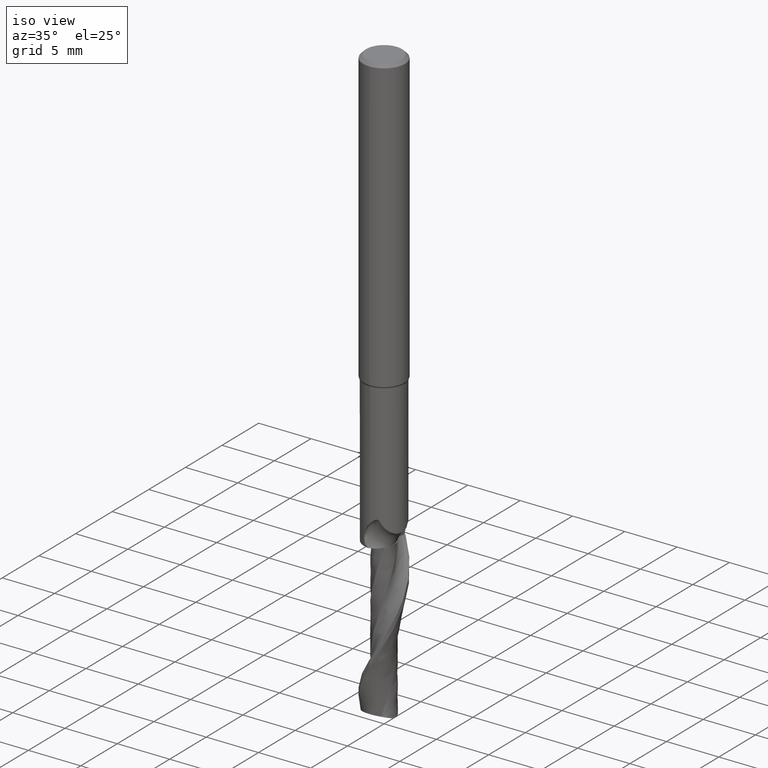
[diagram: clean part render]
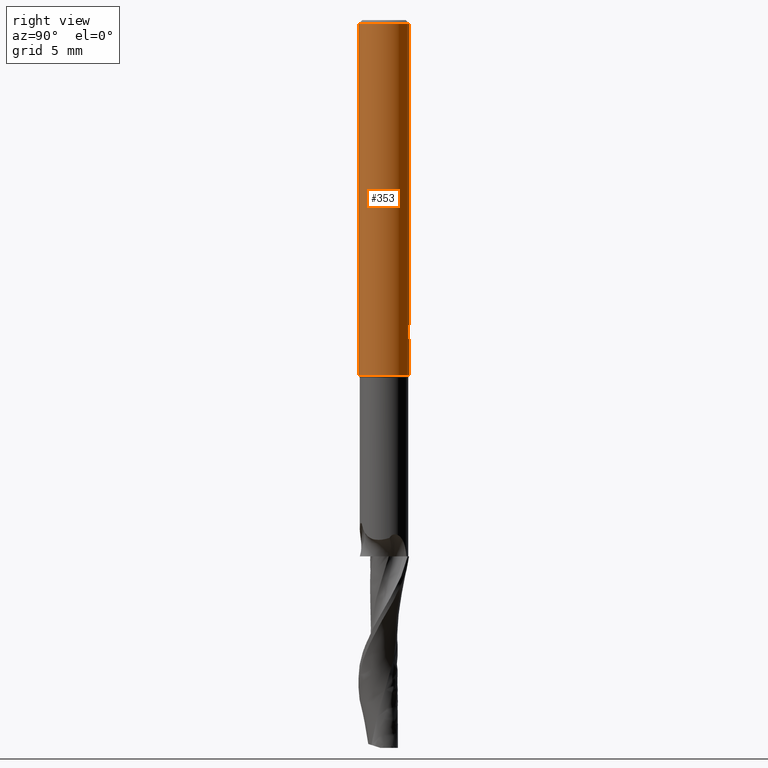
[diagram: tour spotlight — one face highlighted and labeled with its STEP entity id]
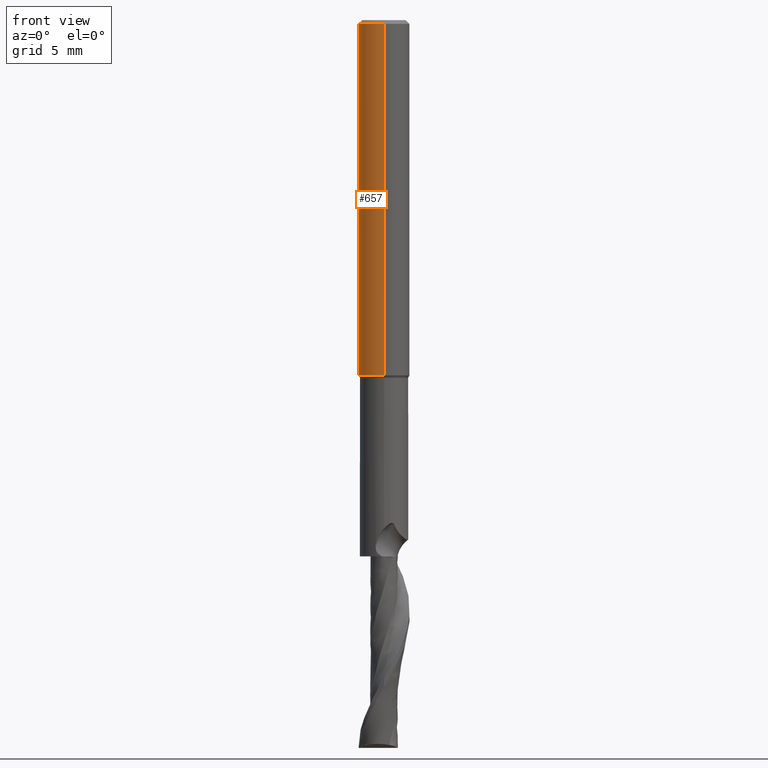
[diagram: tour spotlight — one face highlighted and labeled with its STEP entity id]
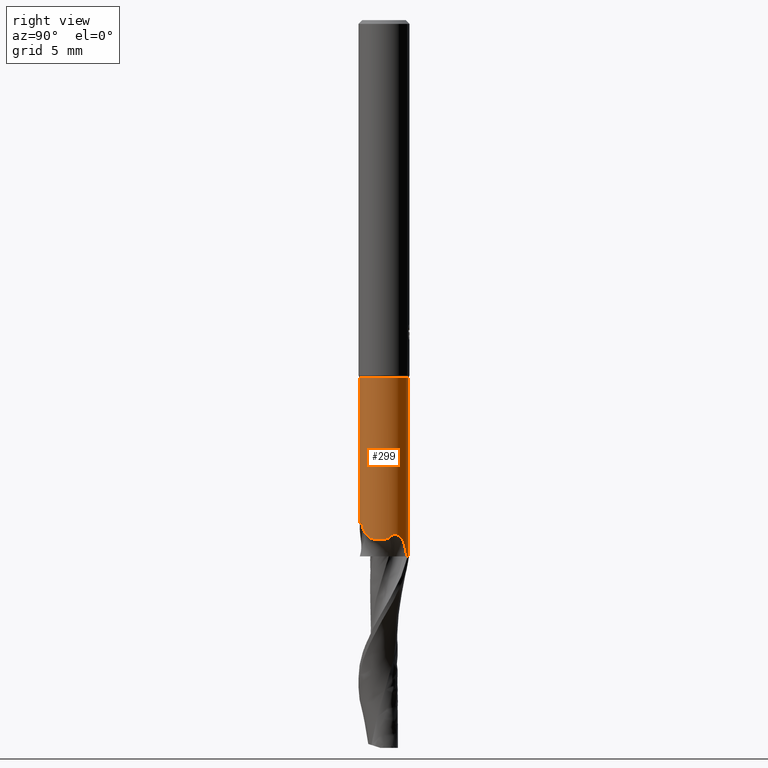
[diagram: tour spotlight — one face highlighted and labeled with its STEP entity id]
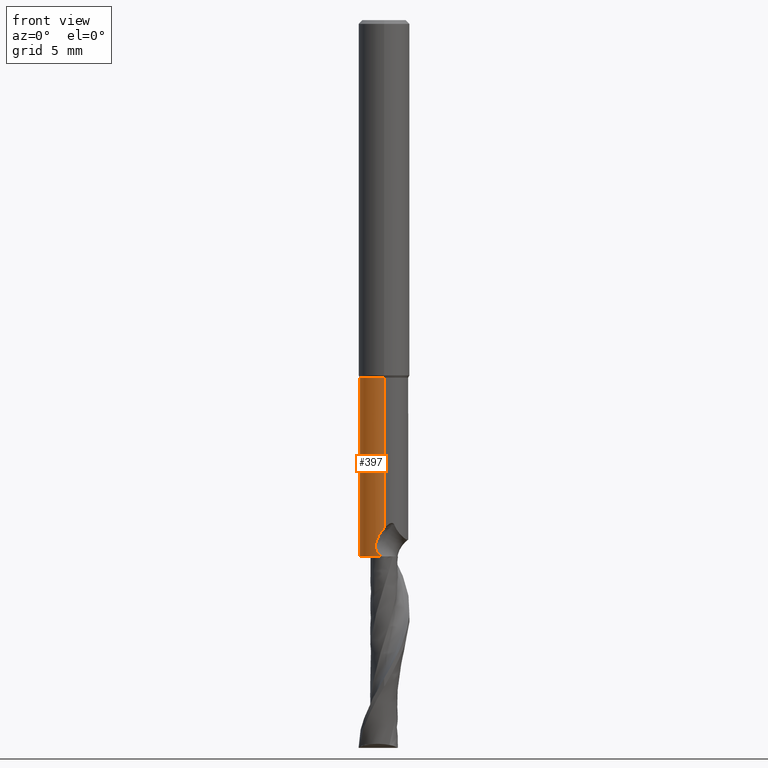
[diagram: tour spotlight — one face highlighted and labeled with its STEP entity id]
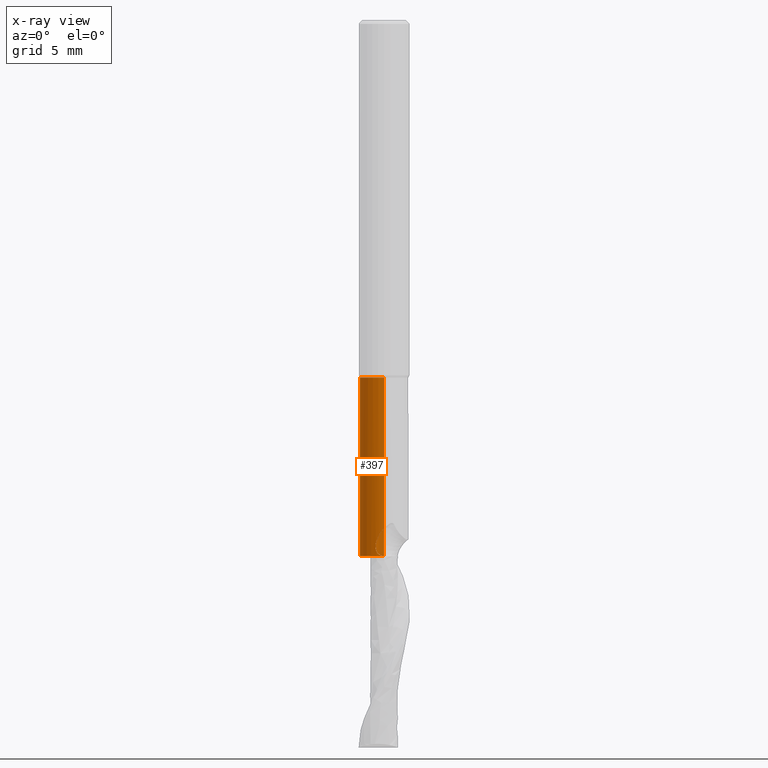
[diagram: x-ray of the same camera — body ghosted, this tour face saturated]
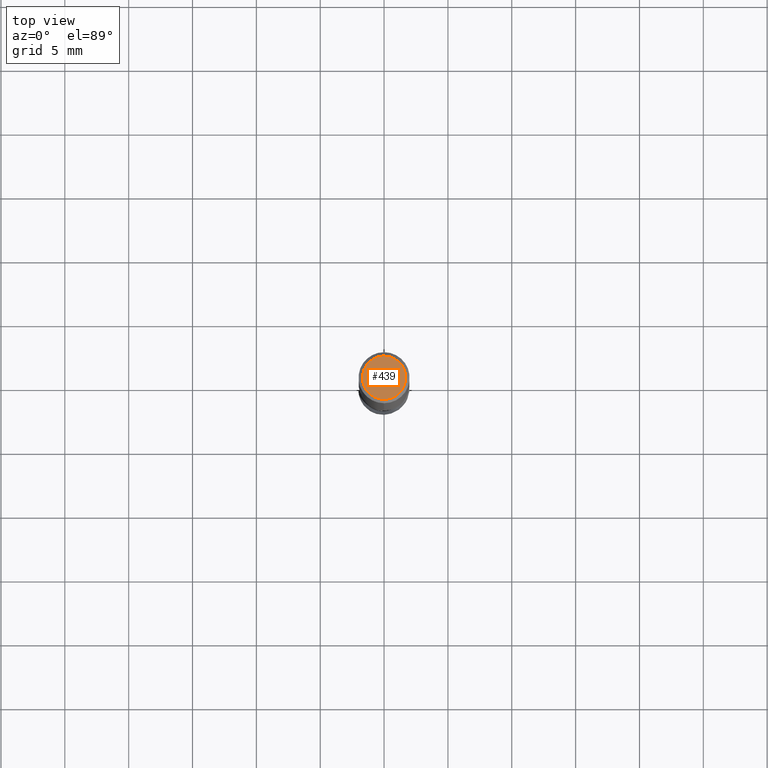
[diagram: tour spotlight — one face highlighted and labeled with its STEP entity id]
A machine part: a face-by-face anatomy tour. The part has 44 B-rep faces; the first image is the clean iso view, then the 5 largest visible faces are spotlighted one at a time (largest first), each with its STEP entity span.

Face 1 — right view, entity #353. In plain terms, the highlighted cylindrical surface (edge-blend (fillet) strip) has radius 2 mm, axis along (-0, -0, 1).
Definition (entity closure, byte-faithful):
#271=VERTEX_POINT('',#766);
#281=EDGE_CURVE('',#271,#385,#778,.T.);
#297=EDGE_CURVE('',#653,#633,#794,.T.);
#301=VERTEX_POINT('',#799);
#311=EDGE_CURVE('',#425,#403,#809,.T.);
#327=EDGE_CURVE('',#663,#677,#828,.T.);
#329=EDGE_CURVE('',#301,#595,#830,.T.);
#341=EDGE_CURVE('',#403,#697,#843,.T.);
#353=ADVANCED_FACE('',(#856,#857),#858,.T.);
#363=EDGE_CURVE('',#595,#383,#870,.T.);
#383=VERTEX_POINT('',#892);
#385=VERTEX_POINT('',#894);
#403=VERTEX_POINT('',#915);
#417=EDGE_CURVE('',#535,#301,#930,.T.);
#425=VERTEX_POINT('',#938);
#461=EDGE_CURVE('',#633,#535,#979,.T.);
#467=VERTEX_POINT('',#985);
#477=VERTEX_POINT('',#995);
#485=EDGE_CURVE('',#677,#653,#1003,.T.);
#519=EDGE_CURVE('',#383,#467,#1040,.T.);
#535=VERTEX_POINT('',#1058);
#549=EDGE_CURVE('',#385,#663,#1073,.T.);
#551=EDGE_CURVE('',#477,#425,#1075,.T.);
#565=EDGE_CURVE('',#477,#697,#1091,.T.);
#595=VERTEX_POINT('',#1124);
#611=EDGE_CURVE('',#467,#271,#1141,.T.);
#633=VERTEX_POINT('',#1164);
#653=VERTEX_POINT('',#1186);
#663=VERTEX_POINT('',#1199);
#677=VERTEX_POINT('',#1213);
#697=VERTEX_POINT('',#1233);
#766=CARTESIAN_POINT('',(0.0141420472348298,1.99995,-24.2846962754027));
#778=LINE('',#1316,#1317);
#794=B_SPLINE_CURVE_WITH_KNOTS('',3,(#1349,#1350,#1351,#1352,#1353,#1354,#1355,#1356,#1357,#1358),.UNSPECIFIED.,.F.,.F.,(4,2,2,2,4),(2.47863710077646,2.75415673208568,3.02971394424,3.30527115639432,3.58031831499124),.UNSPECIFIED.);
#799=CARTESIAN_POINT('',(0.388239530106406,1.96195567413302,-25.0531738714549));
#809=CIRCLE('',#1389,2.0);
#828=ELLIPSE('',#1891,2.22985686408572,2.0);
#830=B_SPLINE_CURVE_WITH_KNOTS('',3,(#1894,#1895,#1896,#1897,#1898,#1899),.UNSPECIFIED.,.F.,.F.,(4,2,4),(3.58031793477393,3.85536506812274,4.13079977698029),.UNSPECIFIED.);
#843=LINE('',#1955,#1956);
#856=FACE_OUTER_BOUND('',#2013,.T.);
#857=FACE_BOUND('',#2014,.T.);
#858=CYLINDRICAL_SURFACE('',#2015,2.0);
#870=LINE('',#2065,#2066);
#892=CARTESIAN_POINT('',(0.594300726619978,1.90966139572935,-24.0560046934539));
#894=CARTESIAN_POINT('',(0.0141420472348278,1.99995,-24.4953741551121));
#915=CARTESIAN_POINT('',(2.44921270764475E-016,-2.0,-27.827));
#930=LINE('',#2417,#2418);
#938=CARTESIAN_POINT('',(0.0,2.0,-27.827));
#979=ELLIPSE('',#2561,6.09598914673955,2.0);
#985=CARTESIAN_POINT('',(0.355294106929425,1.96818853202157,-23.8271001230516));
#995=CARTESIAN_POINT('',(0.0,2.0,-0.300000000000001));
#1003=LINE('',#2628,#2629);
#1040=B_SPLINE_CURVE_WITH_KNOTS('',3,(#2737,#2738,#2739,#2740,#2741,#2742),.UNSPECIFIED.,.F.,.F.,(4,2,4),(0.275434718458155,0.550869436916311,0.825916579511663),.UNSPECIFIED.);
#1058=CARTESIAN_POINT('',(0.388239530106406,1.96195567413302,-24.4137045165689));
#1073=B_SPLINE_CURVE_WITH_KNOTS('',3,(#3047,#3048,#3049,#3050,#3051,#3052,#3053,#3054,#3055,#3056,#3057,#3058,#3059,#3060),.UNSPECIFIED.,.F.,.F.,(4,2,2,2,2,2,4),(1.3940533448094,1.59305029627677,1.79204724774415,1.99104419921152,2.18953394443492,2.38802368965831,2.58788334465802),.UNSPECIFIED.);
#1075=LINE('',#3063,#3064);
#1091=CIRCLE('',#3083,2.0);
#1124=CARTESIAN_POINT('',(0.594300726619979,1.90966139572935,-24.8449259760814));
#1141=B_SPLINE_CURVE_WITH_KNOTS('',3,(#3378,#3379,#3380,#3381,#3382,#3383,#3384,#3385,#3386,#3387,#3388,#3389,#3390,#3391,#3392,#3393,#3394,#3395,#3396,#3397,#3398,#3399,#3400,#3401,#3402,#3403,#3404),.UNSPECIFIED.,.F.,.F.,(4,2,3,2,2,2,2,2,2,2,2,2,4),(-0.241196566335445,-0.120598283167723,0.0,0.120598283167722,0.241196566335445,0.362106961487308,0.483017356639172,0.603402124489602,0.723786892340032,0.844326704278919,0.964866516217805,1.08540632815669,1.20594614009558),.UNSPECIFIED.);
#1164=CARTESIAN_POINT('',(0.128931499758958,1.99583984036042,-25.1603257347557));
#1186=CARTESIAN_POINT('',(0.0141420472348417,1.99995,-25.1738041171279));
#1199=CARTESIAN_POINT('',(0.254716758957655,1.98371353090765,-24.46278631519));
#1213=CARTESIAN_POINT('',(0.0141420472348321,1.99995,-24.5813936515401));
#1233=CARTESIAN_POINT('',(2.44921270764475E-016,-2.0,-0.300000000000001));
#1316=CARTESIAN_POINT('',(0.0141420472348321,1.99995,-24.500699295237));
#1317=VECTOR('',#4113,1.0);
#1349=CARTESIAN_POINT('',(-0.680868181484992,1.88053676365056,-24.7285993932489));
#1350=CARTESIAN_POINT('',(-0.643826860906208,1.89394795255846,-24.8175974984493));
#1351=CARTESIAN_POINT('',(-0.588311108055693,1.91265667778744,-24.8983839327711));
#1352=CARTESIAN_POINT('',(-0.460784129331614,1.94731730955658,-25.0259706266644));
#1353=CARTESIAN_POINT('',(-0.379956224266731,1.96563920013188,-25.0815724216142));
#1354=CARTESIAN_POINT('',(-0.201824147626191,1.99182609963768,-25.1557590477626));
#1355=CARTESIAN_POINT('',(-0.104455673211344,1.99938137344129,-25.1742984674224));
#1356=CARTESIAN_POINT('',(0.0790754718096537,2.0005381100337,-25.1742984674224));
#1357=CARTESIAN_POINT('',(0.176364487108717,1.99423335410359,-25.1558205509355));
#1358=CARTESIAN_POINT('',(0.265409232102969,1.98231126201576,-25.1187784365451));
#1389=AXIS2_PLACEMENT_3D('',#4134,#4135,#4136);
#1891=AXIS2_PLACEMENT_3D('',#4160,#4161,#4162);
#1894=CARTESIAN_POINT('',(0.265409110337669,1.98231127831876,-25.118778243625));
#1895=CARTESIAN_POINT('',(0.354453847846456,1.97038919280086,-25.0817361325388));
#1896=CARTESIAN_POINT('',(0.435313554004913,1.95316202805645,-25.026172072394));
#1897=CARTESIAN_POINT('',(0.562989172282662,1.9202591568012,-24.89855402393));
#1898=CARTESIAN_POINT('',(0.618572754527316,1.9023425659964,-24.8176876731927));
#1899=CARTESIAN_POINT('',(0.655641428183205,1.88947990665418,-24.7286386647402));
#1955=CARTESIAN_POINT('',(2.44921270764475E-016,-2.0,-14.0635));
#1956=VECTOR('',#4175,1.0);
#2013=EDGE_LOOP('',(#4186,#4187,#4188,#4189));
#2014=EDGE_LOOP('',(#4190,#4191,#4192,#4193,#4194,#4195,#4196,#4197,#4198,#4199,#4200));
#2015=AXIS2_PLACEMENT_3D('',#4201,#4202,#4203);
#2065=CARTESIAN_POINT('',(0.594300726619979,1.90966139572935,-24.4504653347676));
#2066=VECTOR('',#4220,1.0);
#2417=CARTESIAN_POINT('',(0.388239530106406,1.96195567413302,-24.7334391940119));
#2418=VECTOR('',#4283,1.0);
#2561=AXIS2_PLACEMENT_3D('',#4341,#4342,#4343);
#2628=CARTESIAN_POINT('',(0.0141420472348321,1.99995,-24.500699295237));
#2629=VECTOR('',#4345,1.0);
#2737=CARTESIAN_POINT('',(0.655641431725944,1.88947990542486,-24.1722920109577));
#2738=CARTESIAN_POINT('',(0.618572756769115,1.90234256529637,-24.083242999422));
#2739=CARTESIAN_POINT('',(0.562989172577703,1.92025915679417,-24.0023766458891));
#2740=CARTESIAN_POINT('',(0.435313549868482,1.95316202905352,-23.8747585930844));
#2741=CARTESIAN_POINT('',(0.35445384094713,1.97038919417876,-23.8191945310685));
#2742=CARTESIAN_POINT('',(0.26540910040509,1.98231127964862,-23.7821524187404));
#3047=CARTESIAN_POINT('',(-0.419814722809387,1.95544255822371,-23.7704280509732));
#3048=CARTESIAN_POINT('',(-0.446722782526317,1.94966565895748,-23.8352092471449));
#3049=CARTESIAN_POINT('',(-0.460036951189519,1.94637252434889,-23.9057871064825));
#3050=CARTESIAN_POINT('',(-0.460036951189519,1.94637252434889,-24.0384517407941));
#3051=CARTESIAN_POINT('',(-0.44672278252632,1.94966565895748,-24.1090296001318));
#3052=CARTESIAN_POINT('',(-0.392906663092473,1.96121945748994,-24.2385919924752));
#3053=CARTESIAN_POINT('',(-0.352417047036487,1.96927182555512,-24.2976001387423));
#3054=CARTESIAN_POINT('',(-0.259215124739542,1.98368986170307,-24.3906624662857));
#3055=CARTESIAN_POINT('',(-0.200248329557567,1.99100650873055,-24.4310384942736));
#3056=CARTESIAN_POINT('',(-0.0708343866923031,1.9997971898934,-24.4846703352456));
#3057=CARTESIAN_POINT('',(-0.000370120584158862,2.00109406037063,-24.4979137314982));
#3058=CARTESIAN_POINT('',(0.132341223636317,1.99672832643899,-24.4979137314982));
#3059=CARTESIAN_POINT('',(0.20301755667824,1.9907422857204,-24.484506171205));
#3060=CARTESIAN_POINT('',(0.26778183492864,1.98199215156929,-24.4575530075221));
#3063=CARTESIAN_POINT('',(-2.44921270764475E-016,2.0,-14.0635));
#3064=VECTOR('',#4426,1.0);
#3083=AXIS2_PLACEMENT_3D('',#4465,#4466,#4467);
#3378=CARTESIAN_POINT('',(0.295631650406827,1.9780298095018,-23.7442849582727));
#3379=CARTESIAN_POINT('',(0.323880786820468,1.9738077604809,-23.7725719620584));
#3380=CARTESIAN_POINT('',(0.348416185930154,1.969487455183,-23.8084045546681));
#3381=CARTESIAN_POINT('',(0.381007144173937,1.96344295425725,-23.8870391020648));
#3382=CARTESIAN_POINT('',(0.389057376072906,1.96179365839613,-23.9298490040714));
#3383=CARTESIAN_POINT('',(0.389057376072906,1.96179365839613,-23.970048431794));
#3384=CARTESIAN_POINT('',(0.389057376072906,1.96179365839613,-24.0102478595166));
#3385=CARTESIAN_POINT('',(0.381007144173937,1.96344295425725,-24.0530577615232));
#3386=CARTESIAN_POINT('',(0.348416185930154,1.969487455183,-24.1316923089198));
#3387=CARTESIAN_POINT('',(0.323880786820468,1.9738077604809,-24.1675249015296));
#3388=CARTESIAN_POINT('',(0.267309404378482,1.98226278531256,-24.2241721167175));
#3389=CARTESIAN_POINT('',(0.231438460926664,1.98695752117379,-24.2487755772123));
#3390=CARTESIAN_POINT('',(0.152710383597332,1.9945534564892,-24.281462302865));
#3391=CARTESIAN_POINT('',(0.109844622981093,1.99738792629204,-24.2895402621598));
#3392=CARTESIAN_POINT('',(0.0294615715138271,2.00018556457383,-24.2895402621598));
#3393=CARTESIAN_POINT('',(-0.0133231657114743,2.00034281068398,-24.2815250330051));
#3394=CARTESIAN_POINT('',(-0.0920071672463125,1.9982701389473,-24.2489435191623));
#3395=CARTESIAN_POINT('',(-0.127909037236244,1.99610810586212,-24.2243792441208));
#3396=CARTESIAN_POINT('',(-0.184632700329662,1.9916629085794,-24.1677040981433));
#3397=CARTESIAN_POINT('',(-0.209236602175248,1.98909274509457,-24.131791109389));
#3398=CARTESIAN_POINT('',(-0.241884566067165,1.98538705628366,-24.0530553990454));
#3399=CARTESIAN_POINT('',(-0.249926284658786,1.98432276916752,-24.0102283691069));
#3400=CARTESIAN_POINT('',(-0.249926284658786,1.98432276916752,-23.929868494481));
#3401=CARTESIAN_POINT('',(-0.241884566067165,1.98538705628366,-23.8870414645426));
#3402=CARTESIAN_POINT('',(-0.209236602175248,1.98909274509457,-23.808305754199));
#3403=CARTESIAN_POINT('',(-0.184632700329663,1.9916629085794,-23.7723927654447));
#3404=CARTESIAN_POINT('',(-0.156252616870579,1.99388693754714,-23.7440369561549));
#4113=DIRECTION('',(0.0,0.0,-1.0));
#4134=CARTESIAN_POINT('',(0.0,0.0,-27.827));
#4135=DIRECTION('',(0.0,0.0,-1.0));
#4136=DIRECTION('',(0.0,1.0,0.0));
#4160=CARTESIAN_POINT('',(0.0,0.0,-24.5883659161687));
#4161=DIRECTION('',(-0.442195774284071,0.0,0.896918556617774));
#4162=DIRECTION('',(0.896918556617774,-0.0,0.442195774284071));
#4175=DIRECTION('',(-0.0,-0.0,1.0));
#4186=ORIENTED_EDGE('',*,*,#551,.F.);
#4187=ORIENTED_EDGE('',*,*,#565,.T.);
#4188=ORIENTED_EDGE('',*,*,#341,.F.);
#4189=ORIENTED_EDGE('',*,*,#311,.F.);
#4190=ORIENTED_EDGE('',*,*,#327,.T.);
#4191=ORIENTED_EDGE('',*,*,#485,.T.);
#4192=ORIENTED_EDGE('',*,*,#297,.T.);
#4193=ORIENTED_EDGE('',*,*,#461,.T.);
#4194=ORIENTED_EDGE('',*,*,#417,.T.);
#4195=ORIENTED_EDGE('',*,*,#329,.T.);
#4196=ORIENTED_EDGE('',*,*,#363,.T.);
#4197=ORIENTED_EDGE('',*,*,#519,.T.);
#4198=ORIENTED_EDGE('',*,*,#611,.T.);
#4199=ORIENTED_EDGE('',*,*,#281,.T.);
#4200=ORIENTED_EDGE('',*,*,#549,.T.);
#4201=CARTESIAN_POINT('',(0.0,0.0,-14.0635));
#4202=DIRECTION('',(-0.0,-0.0,1.0));
#4203=DIRECTION('',(0.0,1.0,0.0));
#4220=DIRECTION('',(-0.0,-0.0,1.0));
#4283=DIRECTION('',(0.0,0.0,-1.0));
#4341=CARTESIAN_POINT('',(0.0,0.0,-25.5315560174573));
#4342=DIRECTION('',(0.944648353914092,0.0,-0.328084573619969));
#4343=DIRECTION('',(0.328084573619968,-0.0,0.944648353914092));
#4345=DIRECTION('',(0.0,0.0,-1.0));
#4426=DIRECTION('',(0.0,0.0,-1.0));
#4465=CARTESIAN_POINT('',(0.0,0.0,-0.300000000000001));
#4466=DIRECTION('',(0.0,0.0,-1.0));
#4467=DIRECTION('',(0.0,1.0,0.0));

Face 2 — front view, entity #657. In plain terms, the highlighted cylindrical surface (edge-blend (fillet) strip) has radius 2 mm, axis along (-0, -0, 1).
Definition (entity closure, byte-faithful):
#273=EDGE_CURVE('',#419,#669,#768,.T.);
#303=EDGE_CURVE('',#457,#723,#801,.T.);
#321=EDGE_CURVE('',#409,#457,#821,.T.);
#341=EDGE_CURVE('',#403,#697,#843,.T.);
#367=EDGE_CURVE('',#669,#709,#875,.T.);
#403=VERTEX_POINT('',#915);
#409=VERTEX_POINT('',#921);
#419=VERTEX_POINT('',#932);
#425=VERTEX_POINT('',#938);
#437=EDGE_CURVE('',#709,#573,#953,.T.);
#457=VERTEX_POINT('',#975);
#477=VERTEX_POINT('',#995);
#517=EDGE_CURVE('',#571,#419,#1038,.T.);
#539=EDGE_CURVE('',#723,#409,#1062,.T.);
#551=EDGE_CURVE('',#477,#425,#1075,.T.);
#557=EDGE_CURVE('',#573,#571,#1081,.T.);
#571=VERTEX_POINT('',#1097);
#573=VERTEX_POINT('',#1099);
#575=EDGE_CURVE('',#403,#425,#1101,.T.);
#581=EDGE_CURVE('',#697,#477,#1108,.T.);
#657=ADVANCED_FACE('',(#1190,#1191,#1192),#1193,.T.);
#669=VERTEX_POINT('',#1205);
#697=VERTEX_POINT('',#1233);
#709=VERTEX_POINT('',#1246);
#723=VERTEX_POINT('',#1260);
#768=LINE('',#1304,#1305);
#801=ELLIPSE('',#1366,2.22985686408572,2.0);
#821=LINE('',#1636,#1637);
#843=LINE('',#1955,#1956);
#875=B_SPLINE_CURVE_WITH_KNOTS('',3,(#2072,#2073,#2074,#2075,#2076,#2077,#2078,#2079,#2080,#2081,#2082,#2083,#2084,#2085,#2086,#2087,#2088,#2089,#2090,#2091,#2092,#2093,#2094,#2095,#2096,#2097,#2098),.UNSPECIFIED.,.F.,.F.,(4,2,3,2,2,2,2,2,2,2,2,2,4),(-0.241196566335445,-0.120598283167723,0.0,0.120598283167722,0.241196566335445,0.362106961487308,0.483017356639172,0.603402124489602,0.723786892340032,0.844326704278919,0.964866516217805,1.08540632815669,1.20594614009558),.UNSPECIFIED.);
#915=CARTESIAN_POINT('',(2.44921270764475E-016,-2.0,-27.827));
#921=CARTESIAN_POINT('',(-0.0141420472348398,1.99995,-25.1742968356715));
#932=CARTESIAN_POINT('',(-0.0141420472348287,1.99995,-24.4918075411024));
#938=CARTESIAN_POINT('',(0.0,2.0,-27.827));
#953=B_SPLINE_CURVE_WITH_KNOTS('',3,(#2445,#2446,#2447,#2448,#2449,#2450,#2451,#2452,#2453,#2454,#2455,#2456,#2457,#2458,#2459,#2460,#2461,#2462,#2463,#2464,#2465,#2466,#2467,#2468,#2469,#2470,#2471),.UNSPECIFIED.,.F.,.F.,(4,2,3,2,2,2,2,2,2,2,2,2,4),(-0.241196566335445,-0.120598283167723,0.0,0.120598283167722,0.241196566335445,0.362106961487308,0.483017356639172,0.603402124489602,0.723786892340032,0.844326704278919,0.964866516217805,1.08540632815669,1.20594614009558),.UNSPECIFIED.);
#975=CARTESIAN_POINT('',(-0.0141420472348321,1.99995,-24.5953381807972));
#995=CARTESIAN_POINT('',(0.0,2.0,-0.300000000000001));
#1038=B_SPLINE_CURVE_WITH_KNOTS('',3,(#2721,#2722,#2723,#2724,#2725,#2726,#2727,#2728,#2729,#2730,#2731,#2732,#2733,#2734),.UNSPECIFIED.,.F.,.F.,(4,2,2,2,2,2,4),(1.3940533448094,1.59305029627677,1.79204724774415,1.99104419921152,2.18953394443492,2.38802368965831,2.58788334465802),.UNSPECIFIED.);
#1062=B_SPLINE_CURVE_WITH_KNOTS('',3,(#2797,#2798,#2799,#2800,#2801,#2802,#2803,#2804,#2805,#2806),.UNSPECIFIED.,.F.,.F.,(4,2,2,2,4),(2.47863710077646,2.75415673208568,3.02971394424,3.30527115639432,3.58031831499124),.UNSPECIFIED.);
#1075=LINE('',#3063,#3064);
#1081=CIRCLE('',#3071,2.0);
#1097=CARTESIAN_POINT('',(-0.460021123143866,1.94637626533552,-23.9680396758409));
#1099=CARTESIAN_POINT('',(-0.24991996972367,1.98432356452604,-23.9680396758409));
#1101=CIRCLE('',#3100,2.0);
#1108=CIRCLE('',#3110,2.0);
#1190=FACE_OUTER_BOUND('',#3561,.T.);
#1191=FACE_BOUND('',#3562,.T.);
#1192=FACE_BOUND('',#3563,.T.);
#1193=CYLINDRICAL_SURFACE('',#3564,2.0);
#1205=CARTESIAN_POINT('',(-0.0141420472348306,1.99995,-24.2783795339462));
#1233=CARTESIAN_POINT('',(2.44921270764475E-016,-2.0,-0.300000000000001));
#1246=CARTESIAN_POINT('',(-0.216163015515305,1.98828407193825,-24.1129967405364));
#1260=CARTESIAN_POINT('',(-0.59423081161075,1.90968315239268,-24.8813315950532));
#1304=CARTESIAN_POINT('',(-0.0141420472348321,1.99995,-24.500699295237));
#1305=VECTOR('',#4096,1.0);
#1366=AXIS2_PLACEMENT_3D('',#4131,#4132,#4133);
#1636=CARTESIAN_POINT('',(-0.0141420472348321,1.99995,-24.500699295237));
#1637=VECTOR('',#4152,1.0);
#1955=CARTESIAN_POINT('',(2.44921270764475E-016,-2.0,-14.0635));
#1956=VECTOR('',#4175,1.0);
#2072=CARTESIAN_POINT('',(0.295631650406827,1.9780298095018,-23.7442849582727));
#2073=CARTESIAN_POINT('',(0.323880786820468,1.9738077604809,-23.7725719620584));
#2074=CARTESIAN_POINT('',(0.348416185930154,1.969487455183,-23.8084045546681));
#2075=CARTESIAN_POINT('',(0.381007144173937,1.96344295425725,-23.8870391020648));
#2076=CARTESIAN_POINT('',(0.389057376072906,1.96179365839613,-23.9298490040714));
#2077=CARTESIAN_POINT('',(0.389057376072906,1.96179365839613,-23.970048431794));
#2078=CARTESIAN_POINT('',(0.389057376072906,1.96179365839613,-24.0102478595166));
#2079=CARTESIAN_POINT('',(0.381007144173937,1.96344295425725,-24.0530577615232));
#2080=CARTESIAN_POINT('',(0.348416185930154,1.969487455183,-24.1316923089198));
#2081=CARTESIAN_POINT('',(0.323880786820468,1.9738077604809,-24.1675249015296));
#2082=CARTESIAN_POINT('',(0.267309404378482,1.98226278531256,-24.2241721167175));
#2083=CARTESIAN_POINT('',(0.231438460926664,1.98695752117379,-24.2487755772123));
#2084=CARTESIAN_POINT('',(0.152710383597332,1.9945534564892,-24.281462302865));
#2085=CARTESIAN_POINT('',(0.109844622981093,1.99738792629204,-24.2895402621598));
#2086=CARTESIAN_POINT('',(0.0294615715138271,2.00018556457383,-24.2895402621598));
#2087=CARTESIAN_POINT('',(-0.0133231657114743,2.00034281068398,-24.2815250330051));
#2088=CARTESIAN_POINT('',(-0.0920071672463125,1.9982701389473,-24.2489435191623));
#2089=CARTESIAN_POINT('',(-0.127909037236244,1.99610810586212,-24.2243792441208));
#2090=CARTESIAN_POINT('',(-0.184632700329662,1.9916629085794,-24.1677040981433));
#2091=CARTESIAN_POINT('',(-0.209236602175248,1.98909274509457,-24.131791109389));
#2092=CARTESIAN_POINT('',(-0.241884566067165,1.98538705628366,-24.0530553990454));
#2093=CARTESIAN_POINT('',(-0.249926284658786,1.98432276916752,-24.0102283691069));
#2094=CARTESIAN_POINT('',(-0.249926284658786,1.98432276916752,-23.929868494481));
#2095=CARTESIAN_POINT('',(-0.241884566067165,1.98538705628366,-23.8870414645426));
#2096=CARTESIAN_POINT('',(-0.209236602175248,1.98909274509457,-23.808305754199));
#2097=CARTESIAN_POINT('',(-0.184632700329663,1.9916629085794,-23.7723927654447));
#2098=CARTESIAN_POINT('',(-0.156252616870579,1.99388693754714,-23.7440369561549));
#2445=CARTESIAN_POINT('',(0.295631650406827,1.9780298095018,-23.7442849582727));
#2446=CARTESIAN_POINT('',(0.323880786820468,1.9738077604809,-23.7725719620584));
#2447=CARTESIAN_POINT('',(0.348416185930154,1.969487455183,-23.8084045546681));
#2448=CARTESIAN_POINT('',(0.381007144173937,1.96344295425725,-23.8870391020648));
#2449=CARTESIAN_POINT('',(0.389057376072906,1.96179365839613,-23.9298490040714));
#2450=CARTESIAN_POINT('',(0.389057376072906,1.96179365839613,-23.970048431794));
#2451=CARTESIAN_POINT('',(0.389057376072906,1.96179365839613,-24.0102478595166));
#2452=CARTESIAN_POINT('',(0.381007144173937,1.96344295425725,-24.0530577615232));
#2453=CARTESIAN_POINT('',(0.348416185930154,1.969487455183,-24.1316923089198));
#2454=CARTESIAN_POINT('',(0.323880786820468,1.9738077604809,-24.1675249015296));
#2455=CARTESIAN_POINT('',(0.267309404378482,1.98226278531256,-24.2241721167175));
#2456=CARTESIAN_POINT('',(0.231438460926664,1.98695752117379,-24.2487755772123));
#2457=CARTESIAN_POINT('',(0.152710383597332,1.9945534564892,-24.281462302865));
#2458=CARTESIAN_POINT('',(0.109844622981093,1.99738792629204,-24.2895402621598));
#2459=CARTESIAN_POINT('',(0.0294615715138271,2.00018556457383,-24.2895402621598));
#2460=CARTESIAN_POINT('',(-0.0133231657114743,2.00034281068398,-24.2815250330051));
#2461=CARTESIAN_POINT('',(-0.0920071672463125,1.9982701389473,-24.2489435191623));
#2462=CARTESIAN_POINT('',(-0.127909037236244,1.99610810586212,-24.2243792441208));
#2463=CARTESIAN_POINT('',(-0.184632700329662,1.9916629085794,-24.1677040981433));
#2464=CARTESIAN_POINT('',(-0.209236602175248,1.98909274509457,-24.131791109389));
#2465=CARTESIAN_POINT('',(-0.241884566067165,1.98538705628366,-24.0530553990454));
#2466=CARTESIAN_POINT('',(-0.249926284658786,1.98432276916752,-24.0102283691069));
#2467=CARTESIAN_POINT('',(-0.249926284658786,1.98432276916752,-23.929868494481));
#2468=CARTESIAN_POINT('',(-0.241884566067165,1.98538705628366,-23.8870414645426));
#2469=CARTESIAN_POINT('',(-0.209236602175248,1.98909274509457,-23.808305754199));
#2470=CARTESIAN_POINT('',(-0.184632700329663,1.9916629085794,-23.7723927654447));
#2471=CARTESIAN_POINT('',(-0.156252616870579,1.99388693754714,-23.7440369561549));
#2721=CARTESIAN_POINT('',(-0.419814722809387,1.95544255822371,-23.7704280509732));
#2722=CARTESIAN_POINT('',(-0.446722782526317,1.94966565895748,-23.8352092471449));
#2723=CARTESIAN_POINT('',(-0.460036951189519,1.94637252434889,-23.9057871064825));
#2724=CARTESIAN_POINT('',(-0.460036951189519,1.94637252434889,-24.0384517407941));
#2725=CARTESIAN_POINT('',(-0.44672278252632,1.94966565895748,-24.1090296001318));
#2726=CARTESIAN_POINT('',(-0.392906663092473,1.96121945748994,-24.2385919924752));
#2727=CARTESIAN_POINT('',(-0.352417047036487,1.96927182555512,-24.2976001387423));
#2728=CARTESIAN_POINT('',(-0.259215124739542,1.98368986170307,-24.3906624662857));
#2729=CARTESIAN_POINT('',(-0.200248329557567,1.99100650873055,-24.4310384942736));
#2730=CARTESIAN_POINT('',(-0.0708343866923031,1.9997971898934,-24.4846703352456));
#2731=CARTESIAN_POINT('',(-0.000370120584158862,2.00109406037063,-24.4979137314982));
#2732=CARTESIAN_POINT('',(0.132341223636317,1.99672832643899,-24.4979137314982));
#2733=CARTESIAN_POINT('',(0.20301755667824,1.9907422857204,-24.484506171205));
#2734=CARTESIAN_POINT('',(0.26778183492864,1.98199215156929,-24.4575530075221));
#2797=CARTESIAN_POINT('',(-0.680868181484992,1.88053676365056,-24.7285993932489));
#2798=CARTESIAN_POINT('',(-0.643826860906208,1.89394795255846,-24.8175974984493));
#2799=CARTESIAN_POINT('',(-0.588311108055693,1.91265667778744,-24.8983839327711));
#2800=CARTESIAN_POINT('',(-0.460784129331614,1.94731730955658,-25.0259706266644));
#2801=CARTESIAN_POINT('',(-0.379956224266731,1.96563920013188,-25.0815724216142));
#2802=CARTESIAN_POINT('',(-0.201824147626191,1.99182609963768,-25.1557590477626));
#2803=CARTESIAN_POINT('',(-0.104455673211344,1.99938137344129,-25.1742984674224));
#2804=CARTESIAN_POINT('',(0.0790754718096537,2.0005381100337,-25.1742984674224));
#2805=CARTESIAN_POINT('',(0.176364487108717,1.99423335410359,-25.1558205509355));
#2806=CARTESIAN_POINT('',(0.265409232102969,1.98231126201576,-25.1187784365451));
#3063=CARTESIAN_POINT('',(-2.44921270764475E-016,2.0,-14.0635));
#3064=VECTOR('',#4426,1.0);
#3071=AXIS2_PLACEMENT_3D('',#4427,#4428,#4429);
#3100=AXIS2_PLACEMENT_3D('',#4468,#4469,#4470);
#3110=AXIS2_PLACEMENT_3D('',#4480,#4481,#4482);
#3561=EDGE_LOOP('',(#4561,#4562,#4563,#4564));
#3562=EDGE_LOOP('',(#4565,#4566,#4567));
#3563=EDGE_LOOP('',(#4568,#4569,#4570,#4571,#4572));
#3564=AXIS2_PLACEMENT_3D('',#4573,#4574,#4575);
#4096=DIRECTION('',(-0.0,-0.0,1.0));
#4131=CARTESIAN_POINT('',(0.0,0.0,-24.5883659161687));
#4132=DIRECTION('',(-0.442195774284071,0.0,0.896918556617774));
#4133=DIRECTION('',(0.896918556617774,-0.0,0.442195774284071));
#4152=DIRECTION('',(-0.0,-0.0,1.0));
#4175=DIRECTION('',(-0.0,-0.0,1.0));
#4426=DIRECTION('',(0.0,0.0,-1.0));
#4427=CARTESIAN_POINT('',(0.0,0.0,-23.9680396758409));
#4428=DIRECTION('',(0.0,-0.0,1.0));
#4429=DIRECTION('',(0.0,1.0,0.0));
#4468=CARTESIAN_POINT('',(0.0,0.0,-27.827));
#4469=DIRECTION('',(0.0,0.0,-1.0));
#4470=DIRECTION('',(0.0,1.0,0.0));
#4480=CARTESIAN_POINT('',(0.0,0.0,-0.300000000000001));
#4481=DIRECTION('',(0.0,0.0,-1.0));
#4482=DIRECTION('',(0.0,1.0,0.0));
#4561=ORIENTED_EDGE('',*,*,#551,.T.);
#4562=ORIENTED_EDGE('',*,*,#575,.F.);
#4563=ORIENTED_EDGE('',*,*,#341,.T.);
#4564=ORIENTED_EDGE('',*,*,#581,.T.);
#4565=ORIENTED_EDGE('',*,*,#539,.T.);
#4566=ORIENTED_EDGE('',*,*,#321,.T.);
#4567=ORIENTED_EDGE('',*,*,#303,.T.);
#4568=ORIENTED_EDGE('',*,*,#367,.T.);
#4569=ORIENTED_EDGE('',*,*,#437,.T.);
#4570=ORIENTED_EDGE('',*,*,#557,.T.);
#4571=ORIENTED_EDGE('',*,*,#517,.T.);
#4572=ORIENTED_EDGE('',*,*,#273,.T.);
#4573=CARTESIAN_POINT('',(0.0,0.0,-14.0635));
#4574=DIRECTION('',(-0.0,-0.0,1.0));
#4575=DIRECTION('',(0.0,1.0,0.0));

Face 3 — right view, entity #299. In plain terms, the highlighted cylindrical surface (edge-blend (fillet) strip) has radius 1.9 mm, axis along (-0, -0, 1).
Definition (entity closure, byte-faithful):
#289=EDGE_CURVE('',#555,#609,#786,.T.);
#293=VERTEX_POINT('',#790);
#299=ADVANCED_FACE('',(#796),#797,.T.);
#337=EDGE_CURVE('',#349,#631,#838,.T.);
#349=VERTEX_POINT('',#852);
#399=VERTEX_POINT('',#911);
#441=VERTEX_POINT('',#958);
#451=EDGE_CURVE('',#609,#729,#969,.T.);
#459=VERTEX_POINT('',#977);
#483=EDGE_CURVE('',#441,#459,#1001,.T.);
#555=VERTEX_POINT('',#1079);
#609=VERTEX_POINT('',#1139);
#631=VERTEX_POINT('',#1162);
#655=EDGE_CURVE('',#555,#399,#1188,.T.);
#659=EDGE_CURVE('',#729,#293,#1195,.T.);
#695=EDGE_CURVE('',#293,#441,#1231,.T.);
#711=EDGE_CURVE('',#349,#399,#1248,.T.);
#729=VERTEX_POINT('',#1268);
#739=EDGE_CURVE('',#631,#459,#1280,.T.);
#786=B_SPLINE_CURVE_WITH_KNOTS('',3,(#1329,#1330,#1331,#1332,#1333,#1334,#1335,#1336,#1337,#1338,#1339,#1340),.UNSPECIFIED.,.F.,.F.,(4,2,2,2,2,4),(0.0,0.668367994517273,1.00067862163745,1.25160891102882,1.52447681484561,1.7321275395707),.UNSPECIFIED.);
#790=CARTESIAN_POINT('',(1.85024680195692,0.431736927246446,-40.547587971605));
#796=FACE_OUTER_BOUND('',#1360,.T.);
#797=CYLINDRICAL_SURFACE('',#1361,1.89995);
#838=LINE('',#1948,#1949);
#852=CARTESIAN_POINT('',(0.0,1.89995,-28.0));
#911=CARTESIAN_POINT('',(2.32669084194483E-016,-1.89995,-28.0));
#958=CARTESIAN_POINT('',(0.992372612139679,1.62018721176754,-41.1370354590659));
#969=B_SPLINE_CURVE_WITH_KNOTS('',3,(#2499,#2500,#2501,#2502,#2503,#2504,#2505,#2506,#2507,#2508,#2509,#2510),.UNSPECIFIED.,.F.,.F.,(4,2,2,2,2,4),(0.0,0.240799102933944,0.42595106681335,0.574650464629731,0.705465763767335,0.847141200472055),.UNSPECIFIED.);
#977=CARTESIAN_POINT('',(0.708719581435518,1.76281778904964,-42.0));
#1001=B_SPLINE_CURVE_WITH_KNOTS('',3,(#2622,#2623,#2624,#2625),.UNSPECIFIED.,.F.,.F.,(4,4),(0.0,0.922501570671301),.UNSPECIFIED.);
#1079=CARTESIAN_POINT('',(1.06001537085755E-015,-1.89995,-39.8008544064858));
#1139=CARTESIAN_POINT('',(0.36235853993861,-1.86507541162108,-39.4774738471569));
#1162=CARTESIAN_POINT('',(-2.32686568536635E-016,1.89995,-42.0));
#1188=LINE('',#3558,#3559);
#1195=B_SPLINE_CURVE_WITH_KNOTS('',3,(#3567,#3568,#3569,#3570,#3571,#3572,#3573,#3574,#3575,#3576,#3577,#3578,#3579,#3580),.UNSPECIFIED.,.F.,.F.,(4,2,2,2,2,2,4),(0.0,0.614013807696654,1.30204628128291,1.84411508609636,2.35817977047248,2.71221312306296,3.09152207882384),.UNSPECIFIED.);
#1231=B_SPLINE_CURVE_WITH_KNOTS('',3,(#3699,#3700,#3701,#3702,#3703,#3704,#3705,#3706,#3707,#3708,#3709,#3710,#3711,#3712),.UNSPECIFIED.,.F.,.F.,(4,2,2,2,2,2,4),(0.0,0.224690135222558,0.415528786372032,0.615367834159402,0.871002388052813,1.22884229533279,1.76818153885681),.UNSPECIFIED.);
#1248=CIRCLE('',#4003,1.89995);
#1268=CARTESIAN_POINT('',(0.809816598801432,-1.7187225136146,-39.5405846122585));
#1280=CIRCLE('',#4072,1.89995);
#1329=CARTESIAN_POINT('',(-0.618355743039848,-1.79650944265529,-40.854833732586));
#1330=CARTESIAN_POINT('',(-0.550018199369805,-1.82003111840621,-40.6440926660427));
#1331=CARTESIAN_POINT('',(-0.460037028140922,-1.84708864149269,-40.4418887120525));
#1332=CARTESIAN_POINT('',(-0.288596420428789,-1.87879598012426,-40.1585160666002));
#1333=CARTESIAN_POINT('',(-0.226002862846885,-1.88771362277346,-40.0682820645121));
#1334=CARTESIAN_POINT('',(-0.105710448624552,-1.89771765498704,-39.9165855348759));
#1335=CARTESIAN_POINT('',(-0.0509920688828608,-1.90014213688104,-39.854020700968));
#1336=CARTESIAN_POINT('',(0.069470400186481,-1.8997162835723,-39.7283631807595));
#1337=CARTESIAN_POINT('',(0.135062771245203,-1.8963865073939,-39.6664300534257));
#1338=CARTESIAN_POINT('',(0.255272369330916,-1.88344784821279,-39.5621833354934));
#1339=CARTESIAN_POINT('',(0.308348331335444,-1.87556885344616,-39.5190760115132));
#1340=CARTESIAN_POINT('',(0.362358539938607,-1.86507541162108,-39.4774738471569));
#1360=EDGE_LOOP('',(#4119,#4120,#4121,#4122,#4123,#4124,#4125,#4126,#4127));
#1361=AXIS2_PLACEMENT_3D('',#4128,#4129,#4130);
#1948=CARTESIAN_POINT('',(-2.32686568536635E-016,1.89995,-35.0));
#1949=VECTOR('',#4166,1.0);
#2499=CARTESIAN_POINT('',(0.362358539982114,-1.86507541161263,-39.4774738472476));
#2500=CARTESIAN_POINT('',(0.427561196929153,-1.85240743077541,-39.4324091652514));
#2501=CARTESIAN_POINT('',(0.487583471083152,-1.83716895375522,-39.4052626263524));
#2502=CARTESIAN_POINT('',(0.582257950017887,-1.80904083537358,-39.3824040975008));
#2503=CARTESIAN_POINT('',(0.619868244859634,-1.79634034206091,-39.3808257482861));
#2504=CARTESIAN_POINT('',(0.680095722143181,-1.77428743717793,-39.3910461617878));
#2505=CARTESIAN_POINT('',(0.705499258163338,-1.76428025196049,-39.4004989728692));
#2506=CARTESIAN_POINT('',(0.748168738200188,-1.74657407472722,-39.4289082092088));
#2507=CARTESIAN_POINT('',(0.765219441793799,-1.73910132596757,-39.4460515050744));
#2508=CARTESIAN_POINT('',(0.793668720697602,-1.72631484703485,-39.4887065118519));
#2509=CARTESIAN_POINT('',(0.803872971153199,-1.72152299379014,-39.5138608086835));
#2510=CARTESIAN_POINT('',(0.809816598801431,-1.7187225136146,-39.5405846122585));
#2622=CARTESIAN_POINT('',(0.992372612139682,1.62018721176754,-41.1370354590659));
#2623=CARTESIAN_POINT('',(0.869137176779022,1.69566952023707,-41.4084613616019));
#2624=CARTESIAN_POINT('',(0.771268546514886,1.73767073379206,-41.6973635175481));
#2625=CARTESIAN_POINT('',(0.708719581435518,1.76281778904964,-42.0));
#3558=CARTESIAN_POINT('',(2.3265159985233E-016,-1.89995,-35.0));
#3559=VECTOR('',#4559,1.0);
#3567=CARTESIAN_POINT('',(0.809816599004638,-1.71872251351885,-39.5405846121332));
#3568=CARTESIAN_POINT('',(0.880522331280802,-1.68540784219079,-39.7297437000638));
#3569=CARTESIAN_POINT('',(0.9811961242957,-1.63261507274645,-39.9013799156821));
#3570=CARTESIAN_POINT('',(1.21636782463932,-1.46742034992836,-40.2240191718837));
#3571=CARTESIAN_POINT('',(1.35464859653368,-1.34714611024193,-40.3724275888259));
#3572=CARTESIAN_POINT('',(1.57901772414401,-1.06835489787471,-40.571913508003));
#3573=CARTESIAN_POINT('',(1.66829899045756,-0.926245882653949,-40.6348914733822));
#3574=CARTESIAN_POINT('',(1.80703039706247,-0.610441889665142,-40.7042459114359));
#3575=CARTESIAN_POINT('',(1.85457153433786,-0.44664464603742,-40.7117869379824));
#3576=CARTESIAN_POINT('',(1.89671013379764,-0.16158855302968,-40.6911093726723));
#3577=CARTESIAN_POINT('',(1.90291915601126,-0.0447109658351272,-40.6734400440279));
#3578=CARTESIAN_POINT('',(1.89405905507061,0.193922948123756,-40.6224289570156));
#3579=CARTESIAN_POINT('',(1.87744528862396,0.31517540610271,-40.5881385236881));
#3580=CARTESIAN_POINT('',(1.85024680195691,0.431736927246447,-40.547587971605));
#3699=CARTESIAN_POINT('',(1.85024680191477,0.431736927427089,-40.5475879717725));
#3700=CARTESIAN_POINT('',(1.84172493602844,0.468258137684639,-40.4827566796927));
#3701=CARTESIAN_POINT('',(1.82995424106038,0.514339157295584,-40.4248735043901));
#3702=CARTESIAN_POINT('',(1.79725558249406,0.618210005628626,-40.3400202080329));
#3703=CARTESIAN_POINT('',(1.77855314418109,0.67102929877147,-40.311492666618));
#3704=CARTESIAN_POINT('',(1.73074076121576,0.786401513821218,-40.2763629369528));
#3705=CARTESIAN_POINT('',(1.70241311247292,0.84615552892038,-40.2717695238503));
#3706=CARTESIAN_POINT('',(1.63061772478998,0.978806622267756,-40.2859002262739));
#3707=CARTESIAN_POINT('',(1.58627371691368,1.04859999289284,-40.3111816684755));
#3708=CARTESIAN_POINT('',(1.47737831415121,1.19956324175757,-40.3964950698277));
#3709=CARTESIAN_POINT('',(1.40556341531583,1.28285386120905,-40.4712043263846));
#3710=CARTESIAN_POINT('',(1.21329779619878,1.47101027539947,-40.7188789918149));
#3711=CARTESIAN_POINT('',(1.09440988965689,1.55768887892045,-40.9122984746541));
#3712=CARTESIAN_POINT('',(0.992372612212823,1.62018721172274,-41.1370354591142));
#4003=AXIS2_PLACEMENT_3D('',#4595,#4596,#4597);
#4072=AXIS2_PLACEMENT_3D('',#4648,#4649,#4650);
#4119=ORIENTED_EDGE('',*,*,#337,.F.);
#4120=ORIENTED_EDGE('',*,*,#711,.T.);
#4121=ORIENTED_EDGE('',*,*,#655,.F.);
#4122=ORIENTED_EDGE('',*,*,#289,.T.);
#4123=ORIENTED_EDGE('',*,*,#451,.T.);
#4124=ORIENTED_EDGE('',*,*,#659,.T.);
#4125=ORIENTED_EDGE('',*,*,#695,.T.);
#4126=ORIENTED_EDGE('',*,*,#483,.T.);
#4127=ORIENTED_EDGE('',*,*,#739,.F.);
#4128=CARTESIAN_POINT('',(0.0,0.0,-35.0));
#4129=DIRECTION('',(-0.0,-0.0,1.0));
#4130=DIRECTION('',(0.0,1.0,0.0));
#4166=DIRECTION('',(0.0,0.0,-1.0));
#4559=DIRECTION('',(-0.0,-0.0,1.0));
#4595=CARTESIAN_POINT('',(0.0,0.0,-28.0));
#4596=DIRECTION('',(0.0,0.0,-1.0));
#4597=DIRECTION('',(0.0,1.0,0.0));
#4648=CARTESIAN_POINT('',(0.0,0.0,-42.0));
#4649=DIRECTION('',(0.0,0.0,-1.0));
#4650=DIRECTION('',(0.0,1.0,0.0));

Face 4 — front view, entity #397. An x-ray twin of the same camera follows (body ghosted, this face saturated) — the face is partly hidden behind the body. In plain terms, the highlighted cylindrical surface (edge-blend (fillet) strip) has radius 1.9 mm, axis along (-0, -0, 1).
Definition (entity closure, byte-faithful):
#309=VERTEX_POINT('',#807);
#337=EDGE_CURVE('',#349,#631,#838,.T.);
#349=VERTEX_POINT('',#852);
#397=ADVANCED_FACE('',(#908),#909,.T.);
#399=VERTEX_POINT('',#911);
#487=EDGE_CURVE('',#309,#555,#1005,.T.);
#555=VERTEX_POINT('',#1079);
#567=VERTEX_POINT('',#1093);
#631=VERTEX_POINT('',#1162);
#655=EDGE_CURVE('',#555,#399,#1188,.T.);
#681=EDGE_CURVE('',#399,#349,#1217,.T.);
#683=EDGE_CURVE('',#687,#309,#1219,.T.);
#687=VERTEX_POINT('',#1223);
#689=EDGE_CURVE('',#567,#687,#1225,.T.);
#717=EDGE_CURVE('',#567,#631,#1254,.T.);
#807=CARTESIAN_POINT('',(-0.61835574303985,-1.79650944265529,-40.854833732586));
#838=LINE('',#1948,#1949);
#852=CARTESIAN_POINT('',(0.0,1.89995,-28.0));
#908=FACE_OUTER_BOUND('',#2376,.T.);
#909=CYLINDRICAL_SURFACE('',#2377,1.89995);
#911=CARTESIAN_POINT('',(2.32669084194483E-016,-1.89995,-28.0));
#1005=B_SPLINE_CURVE_WITH_KNOTS('',3,(#2632,#2633,#2634,#2635,#2636,#2637,#2638,#2639,#2640,#2641,#2642,#2643),.UNSPECIFIED.,.F.,.F.,(4,2,2,2,2,4),(0.0,0.668367994517273,1.00067862163745,1.25160891102882,1.52447681484561,1.7321275395707),.UNSPECIFIED.);
#1079=CARTESIAN_POINT('',(1.06001537085755E-015,-1.89995,-39.8008544064858));
#1093=CARTESIAN_POINT('',(-0.164106792247066,-1.89284942962677,-42.0));
#1162=CARTESIAN_POINT('',(-2.32686568536635E-016,1.89995,-42.0));
#1188=LINE('',#3558,#3559);
#1217=CIRCLE('',#3666,1.89995);
#1219=B_SPLINE_CURVE_WITH_KNOTS('',3,(#3669,#3670,#3671,#3672,#3673,#3674,#3675,#3676,#3677,#3678,#3679,#3680),.UNSPECIFIED.,.F.,.F.,(4,2,2,2,2,4),(0.0,0.079088741935031,0.214001262626499,0.416329620398767,0.557397105468281,0.703282115879208),.UNSPECIFIED.);
#1223=CARTESIAN_POINT('',(-0.441667390321468,-1.84790149056345,-41.8033066458677));
#1225=B_SPLINE_CURVE_WITH_KNOTS('',3,(#3688,#3689,#3690,#3691),.UNSPECIFIED.,.F.,.F.,(4,4),(0.0,0.344342001225081),.UNSPECIFIED.);
#1254=CIRCLE('',#4039,1.89995);
#1948=CARTESIAN_POINT('',(-2.32686568536635E-016,1.89995,-35.0));
#1949=VECTOR('',#4166,1.0);
#2376=EDGE_LOOP('',(#4259,#4260,#4261,#4262,#4263,#4264,#4265));
#2377=AXIS2_PLACEMENT_3D('',#4266,#4267,#4268);
#2632=CARTESIAN_POINT('',(-0.618355743039848,-1.79650944265529,-40.854833732586));
#2633=CARTESIAN_POINT('',(-0.550018199369805,-1.82003111840621,-40.6440926660427));
#2634=CARTESIAN_POINT('',(-0.460037028140922,-1.84708864149269,-40.4418887120525));
#2635=CARTESIAN_POINT('',(-0.288596420428789,-1.87879598012426,-40.1585160666002));
#2636=CARTESIAN_POINT('',(-0.226002862846885,-1.88771362277346,-40.0682820645121));
#2637=CARTESIAN_POINT('',(-0.105710448624552,-1.89771765498704,-39.9165855348759));
#2638=CARTESIAN_POINT('',(-0.0509920688828608,-1.90014213688104,-39.854020700968));
#2639=CARTESIAN_POINT('',(0.069470400186481,-1.8997162835723,-39.7283631807595));
#2640=CARTESIAN_POINT('',(0.135062771245203,-1.8963865073939,-39.6664300534257));
#2641=CARTESIAN_POINT('',(0.255272369330916,-1.88344784821279,-39.5621833354934));
#2642=CARTESIAN_POINT('',(0.308348331335444,-1.87556885344616,-39.5190760115132));
#2643=CARTESIAN_POINT('',(0.362358539938607,-1.86507541162108,-39.4774738471569));
#3558=CARTESIAN_POINT('',(2.3265159985233E-016,-1.89995,-35.0));
#3559=VECTOR('',#4559,1.0);
#3666=AXIS2_PLACEMENT_3D('',#4577,#4578,#4579);
#3669=CARTESIAN_POINT('',(-0.441667390321469,-1.84790149056345,-41.8033066458677));
#3670=CARTESIAN_POINT('',(-0.464261990378172,-1.84250114963978,-41.7908437569725));
#3671=CARTESIAN_POINT('',(-0.484663616325187,-1.83718361303982,-41.7730705163378));
#3672=CARTESIAN_POINT('',(-0.532244452690144,-1.82414177759192,-41.7211475151119));
#3673=CARTESIAN_POINT('',(-0.560353188221277,-1.81561800466178,-41.6774774407251));
#3674=CARTESIAN_POINT('',(-0.621196841042573,-1.79593885496208,-41.5447735799474));
#3675=CARTESIAN_POINT('',(-0.648613642819567,-1.78585453956847,-41.4451320952957));
#3676=CARTESIAN_POINT('',(-0.669121715671798,-1.77824825938404,-41.2540266355874));
#3677=CARTESIAN_POINT('',(-0.669585750347743,-1.77806595026878,-41.1742646697568));
#3678=CARTESIAN_POINT('',(-0.65562892456702,-1.78326050737305,-41.0138446947046));
#3679=CARTESIAN_POINT('',(-0.640725024566702,-1.78880997090758,-40.9333854707471));
#3680=CARTESIAN_POINT('',(-0.618355742976724,-1.79650944267702,-40.8548337327162));
#3688=CARTESIAN_POINT('',(-0.164106792247063,-1.89284942962677,-42.0));
#3689=CARTESIAN_POINT('',(-0.260682394120268,-1.88447649093197,-41.9385374215101));
#3690=CARTESIAN_POINT('',(-0.353031045776512,-1.86908648510016,-41.8732681845119));
#3691=CARTESIAN_POINT('',(-0.441667390312556,-1.84790149056558,-41.8033066462752));
#4039=AXIS2_PLACEMENT_3D('',#4599,#4600,#4601);
#4166=DIRECTION('',(0.0,0.0,-1.0));
#4259=ORIENTED_EDGE('',*,*,#337,.T.);
#4260=ORIENTED_EDGE('',*,*,#717,.F.);
#4261=ORIENTED_EDGE('',*,*,#689,.T.);
#4262=ORIENTED_EDGE('',*,*,#683,.T.);
#4263=ORIENTED_EDGE('',*,*,#487,.T.);
#4264=ORIENTED_EDGE('',*,*,#655,.T.);
#4265=ORIENTED_EDGE('',*,*,#681,.T.);
#4266=CARTESIAN_POINT('',(0.0,0.0,-35.0));
#4267=DIRECTION('',(-0.0,-0.0,1.0));
#4268=DIRECTION('',(0.0,1.0,0.0));
#4559=DIRECTION('',(-0.0,-0.0,1.0));
#4577=CARTESIAN_POINT('',(0.0,0.0,-28.0));
#4578=DIRECTION('',(0.0,0.0,-1.0));
#4579=DIRECTION('',(0.0,1.0,0.0));
#4599=CARTESIAN_POINT('',(0.0,0.0,-42.0));
#4600=DIRECTION('',(0.0,0.0,-1.0));
#4601=DIRECTION('',(0.0,1.0,0.0));

Face 5 — top view, entity #439. In plain terms, the highlighted planar face has unit normal (-0, 0, 1).
Definition (entity closure, byte-faithful):
#287=EDGE_CURVE('',#639,#333,#784,.T.);
#333=VERTEX_POINT('',#834);
#439=ADVANCED_FACE('',(#955),#956,.T.);
#601=EDGE_CURVE('',#333,#639,#1130,.T.);
#639=VERTEX_POINT('',#1171);
#784=CIRCLE('',#1326,1.7);
#834=CARTESIAN_POINT('',(2.08183080149804E-016,-1.7,0.0));
#955=FACE_OUTER_BOUND('',#2473,.T.);
#956=PLANE('',#2474);
#1130=CIRCLE('',#3346,1.7);
#1171=CARTESIAN_POINT('',(0.0,1.7,0.0));
#1326=AXIS2_PLACEMENT_3D('',#4115,#4116,#4117);
#2473=EDGE_LOOP('',(#4318,#4319));
#2474=AXIS2_PLACEMENT_3D('',#4320,#4321,#4322);
#3346=AXIS2_PLACEMENT_3D('',#4502,#4503,#4504);
#4115=CARTESIAN_POINT('',(0.0,0.0,0.0));
#4116=DIRECTION('',(0.0,0.0,-1.0));
#4117=DIRECTION('',(0.0,1.0,0.0));
#4318=ORIENTED_EDGE('',*,*,#287,.F.);
#4319=ORIENTED_EDGE('',*,*,#601,.F.);
#4320=CARTESIAN_POINT('',(0.0,0.85,0.0));
#4321=DIRECTION('',(-0.0,0.0,1.0));
#4322=DIRECTION('',(0.0,-1.0,0.0));
#4502=CARTESIAN_POINT('',(0.0,0.0,0.0));
#4503=DIRECTION('',(0.0,0.0,-1.0));
#4504=DIRECTION('',(0.0,1.0,0.0));